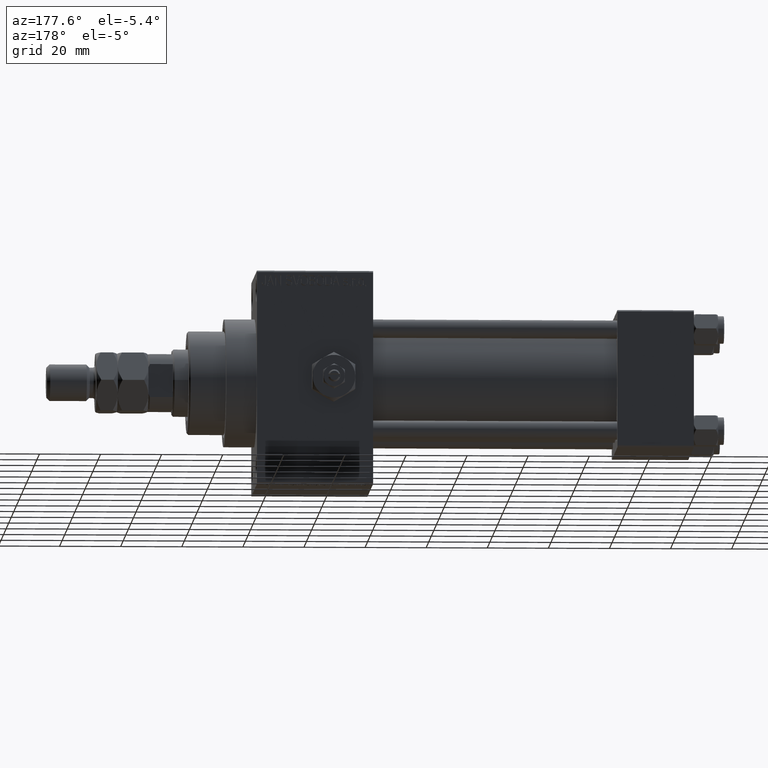
[diagram: clean part render]
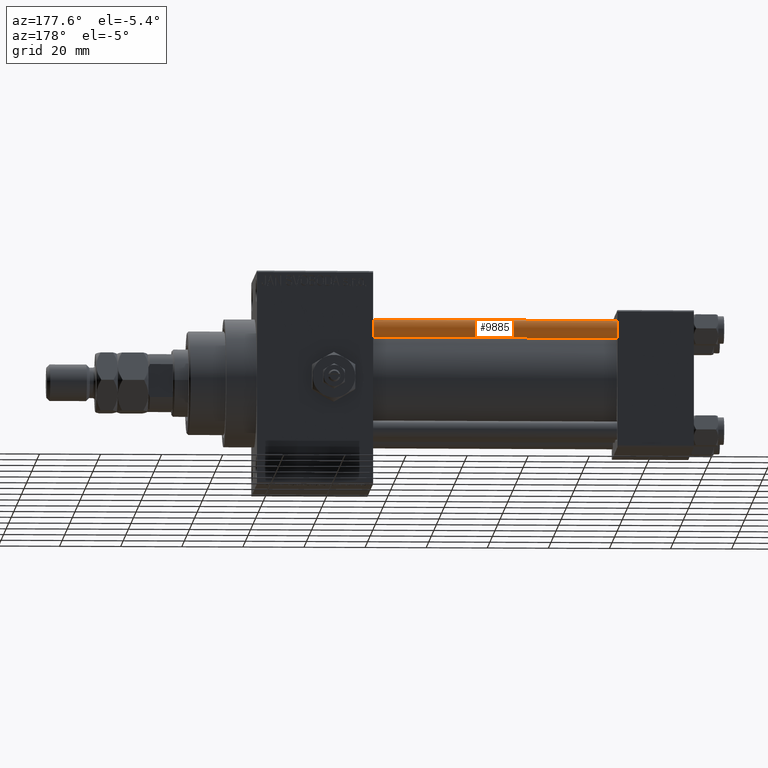
[diagram: same view with one face highlighted and labeled with its STEP entity id]
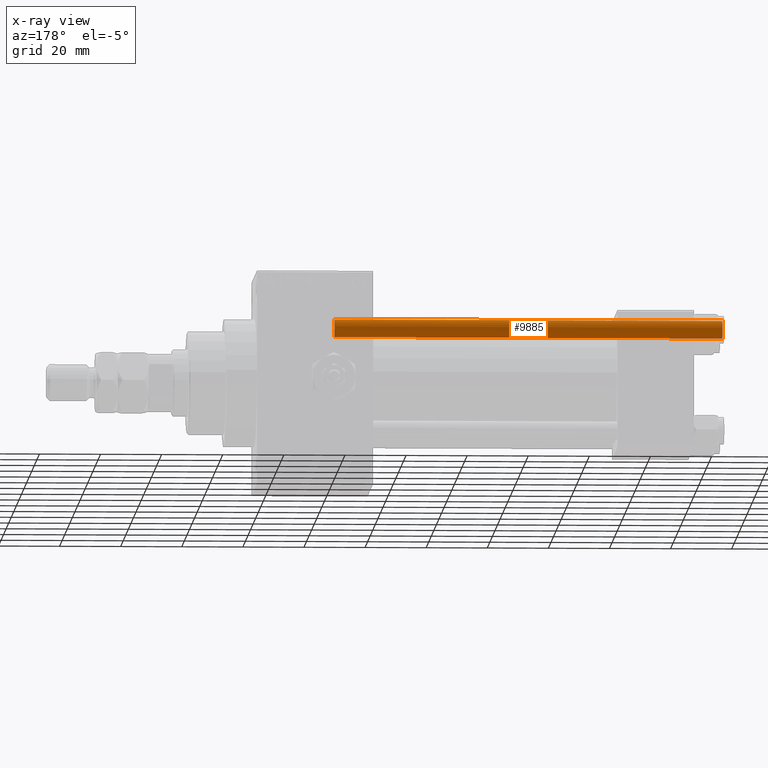
[diagram: x-ray of the same camera — body ghosted, the highlighted face saturated]
A machine part, auxiliary view. The second image highlights one B-rep face of the part: STEP entity #9885.
The next image is the same camera in x-ray: the body ghosted, the highlighted face saturated — about 0% of this face is hidden behind the body in this view.
In plain terms, the highlighted cylindrical surface (edge-blend (fillet) strip) has radius 3 mm, axis along (-1, -0, 0).
Its self-contained STEP definition (entity closure, byte-faithful):
#2286 = VERTEX_POINT ( 'NONE', #40734 ) ;
#3517 = ORIENTED_EDGE ( 'NONE', *, *, #31723, .F. ) ;
#4686 = VERTEX_POINT ( 'NONE', #13494 ) ;
#6886 = LINE ( 'NONE', #49042, #27072 ) ;
#7141 = DIRECTION ( 'NONE',  ( -0.000000000000000000, -0.000000000000000000, -1.000000000000000000 ) ) ;
#9885 = ADVANCED_FACE ( 'NONE', ( #42429 ), #49527, .T. ) ;
#13494 = CARTESIAN_POINT ( 'NONE',  ( -3.000000000000000444, 0.000000000000000000, 0.5000000000000281997 ) ) ;
#13751 = EDGE_CURVE ( 'NONE', #22131, #2286, #20049, .T. ) ;
#14728 = DIRECTION ( 'NONE',  ( -0.000000000000000000, -0.000000000000000000, -1.000000000000000000 ) ) ;
#18893 = CARTESIAN_POINT ( 'NONE',  ( 0.000000000000000000, 0.000000000000000000, 0.5000000000000281997 ) ) ;
#19083 = DIRECTION ( 'NONE',  ( 1.000000000000000000, 0.000000000000000000, 0.000000000000000000 ) ) ;
#19409 = DIRECTION ( 'NONE',  ( -0.000000000000000000, -0.000000000000000000, 1.000000000000000000 ) ) ;
#20049 = CIRCLE ( 'NONE', #31437, 3.000000000000000444 ) ;
#22131 = VERTEX_POINT ( 'NONE', #28255 ) ;
#22345 = DIRECTION ( 'NONE',  ( -1.000000000000000000, 0.000000000000000000, 0.000000000000000000 ) ) ;
#22395 = EDGE_CURVE ( 'NONE', #2286, #38639, #6886, .T. ) ;
#24783 = AXIS2_PLACEMENT_3D ( 'NONE', #18893, #19409, #50132 ) ;
#25777 = ORIENTED_EDGE ( 'NONE', *, *, #13751, .T. ) ;
#27072 = VECTOR ( 'NONE', #7141, 1000.000000000000000 ) ;
#27210 = DIRECTION ( 'NONE',  ( 0.000000000000000000, 0.000000000000000000, -1.000000000000000000 ) ) ;
#28255 = CARTESIAN_POINT ( 'NONE',  ( -3.000000000000000444, 0.000000000000000000, 127.4999999999999716 ) ) ;
#29704 = VECTOR ( 'NONE', #45537, 1000.000000000000000 ) ;
#29989 = EDGE_CURVE ( 'NONE', #38639, #4686, #46684, .T. ) ;
#30032 = LINE ( 'NONE', #46043, #29704 ) ;
#30819 = EDGE_LOOP ( 'NONE', ( #25777, #44008, #46883, #3517 ) ) ;
#31437 = AXIS2_PLACEMENT_3D ( 'NONE', #34597, #27210, #19083 ) ;
#31723 = EDGE_CURVE ( 'NONE', #22131, #4686, #30032, .T. ) ;
#34597 = CARTESIAN_POINT ( 'NONE',  ( 0.000000000000000000, 0.000000000000000000, 127.4999999999999716 ) ) ;
#38639 = VERTEX_POINT ( 'NONE', #47920 ) ;
#40734 = CARTESIAN_POINT ( 'NONE',  ( 3.000000000000000444, 3.673940397442060361E-16, 127.4999999999999716 ) ) ;
#41925 = CARTESIAN_POINT ( 'NONE',  ( 0.000000000000000000, 0.000000000000000000, 128.0000000000000000 ) ) ;
#42429 = FACE_OUTER_BOUND ( 'NONE', #30819, .T. ) ;
#44008 = ORIENTED_EDGE ( 'NONE', *, *, #22395, .T. ) ;
#45537 = DIRECTION ( 'NONE',  ( -0.000000000000000000, -0.000000000000000000, -1.000000000000000000 ) ) ;
#46043 = CARTESIAN_POINT ( 'NONE',  ( -3.000000000000000444, 0.000000000000000000, 128.0000000000000000 ) ) ;
#46182 = AXIS2_PLACEMENT_3D ( 'NONE', #41925, #14728, #22345 ) ;
#46684 = CIRCLE ( 'NONE', #24783, 3.000000000000000444 ) ;
#46883 = ORIENTED_EDGE ( 'NONE', *, *, #29989, .T. ) ;
#47920 = CARTESIAN_POINT ( 'NONE',  ( 3.000000000000000444, 3.673940397442060361E-16, 0.5000000000000281997 ) ) ;
#49042 = CARTESIAN_POINT ( 'NONE',  ( 3.000000000000000444, 3.673940397442060361E-16, 128.0000000000000000 ) ) ;
#49527 = CYLINDRICAL_SURFACE ( 'NONE', #46182, 3.000000000000000444 ) ;
#50132 = DIRECTION ( 'NONE',  ( 1.000000000000000000, 0.000000000000000000, 0.000000000000000000 ) ) ;